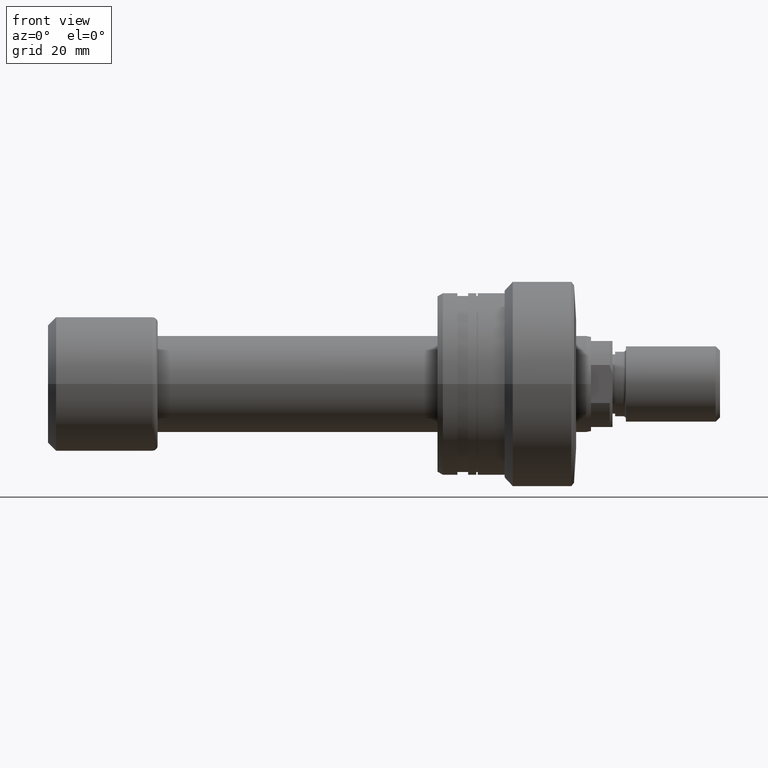
[diagram: clean part render]
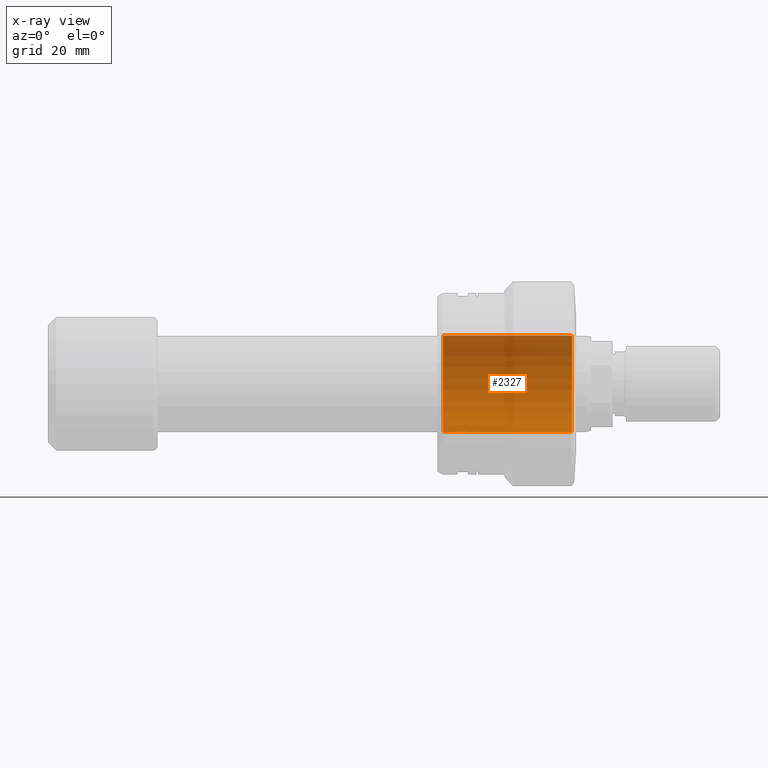
[diagram: x-ray — body ghosted, one internal face saturated and labeled with its STEP entity id]
A machine part, front view, then the same camera in x-ray: the body is ghosted and one INTERNAL B-rep face — a face not visible from any outside direction — is saturated and labeled: STEP entity #2327.
In plain terms, the highlighted cylindrical surface (partial cylindrical patch) has radius 9 mm, axis along (1, 0, 0).
Its self-contained STEP definition (entity closure, byte-faithful):
#267 = VERTEX_POINT ( 'NONE', #2468 ) ;
#286 = DIRECTION ( 'NONE',  ( 1.000000000000000000, -0.000000000000000000, -0.000000000000000000 ) ) ;
#299 = CARTESIAN_POINT ( 'NONE',  ( -1.500000000000000000, 0.000000000000000000, 0.000000000000000000 ) ) ;
#387 = DIRECTION ( 'NONE',  ( 1.000000000000000000, -0.000000000000000000, -0.000000000000000000 ) ) ;
#431 = ORIENTED_EDGE ( 'NONE', *, *, #2657, .T. ) ;
#602 = VECTOR ( 'NONE', #387, 1000.000000000000000 ) ;
#846 = VECTOR ( 'NONE', #286, 1000.000000000000000 ) ;
#892 = VERTEX_POINT ( 'NONE', #1211 ) ;
#896 = CARTESIAN_POINT ( 'NONE',  ( -25.50000000000003197, 0.000000000000000000, 0.000000000000000000 ) ) ;
#897 = ORIENTED_EDGE ( 'NONE', *, *, #1573, .T. ) ;
#955 = LINE ( 'NONE', #967, #846 ) ;
#967 = CARTESIAN_POINT ( 'NONE',  ( -51.95584412271570329, 1.102182119232617517E-15, 9.000000000000000000 ) ) ;
#995 = CARTESIAN_POINT ( 'NONE',  ( -51.95584412271570329, 0.000000000000000000, -9.000000000000000000 ) ) ;
#996 = DIRECTION ( 'NONE',  ( 0.000000000000000000, 0.000000000000000000, -1.000000000000000000 ) ) ;
#1092 = DIRECTION ( 'NONE',  ( -1.000000000000000000, -0.000000000000000000, -0.000000000000000000 ) ) ;
#1138 = ORIENTED_EDGE ( 'NONE', *, *, #2798, .F. ) ;
#1171 = AXIS2_PLACEMENT_3D ( 'NONE', #299, #2286, #996 ) ;
#1211 = CARTESIAN_POINT ( 'NONE',  ( -1.500000000000000000, 1.102182119232617517E-15, 9.000000000000000000 ) ) ;
#1239 = CARTESIAN_POINT ( 'NONE',  ( -25.50000000000003197, 0.000000000000000000, -9.000000000000000000 ) ) ;
#1360 = CIRCLE ( 'NONE', #1171, 9.000000000000000000 ) ;
#1409 = CARTESIAN_POINT ( 'NONE',  ( -51.95584412271570329, 0.000000000000000000, 0.000000000000000000 ) ) ;
#1521 = ORIENTED_EDGE ( 'NONE', *, *, #2802, .T. ) ;
#1573 = EDGE_CURVE ( 'NONE', #2037, #2025, #2598, .T. ) ;
#1883 = CARTESIAN_POINT ( 'NONE',  ( -1.500000000000000000, 0.000000000000000000, -9.000000000000000000 ) ) ;
#2025 = VERTEX_POINT ( 'NONE', #1883 ) ;
#2037 = VERTEX_POINT ( 'NONE', #1239 ) ;
#2042 = CYLINDRICAL_SURFACE ( 'NONE', #2063, 9.000000000000000000 ) ;
#2057 = DIRECTION ( 'NONE',  ( 0.000000000000000000, 0.000000000000000000, -1.000000000000000000 ) ) ;
#2063 = AXIS2_PLACEMENT_3D ( 'NONE', #1409, #2312, #2057 ) ;
#2280 = FACE_OUTER_BOUND ( 'NONE', #2667, .T. ) ;
#2286 = DIRECTION ( 'NONE',  ( 1.000000000000000000, 0.000000000000000000, 0.000000000000000000 ) ) ;
#2312 = DIRECTION ( 'NONE',  ( 1.000000000000000000, -0.000000000000000000, -0.000000000000000000 ) ) ;
#2327 = ADVANCED_FACE ( 'NONE', ( #2280 ), #2042, .F. ) ;
#2351 = CIRCLE ( 'NONE', #2809, 9.000000000000000000 ) ;
#2468 = CARTESIAN_POINT ( 'NONE',  ( -25.50000000000003197, 1.102182119232617517E-15, 9.000000000000000000 ) ) ;
#2494 = DIRECTION ( 'NONE',  ( 0.000000000000000000, 0.000000000000000000, 1.000000000000000000 ) ) ;
#2598 = LINE ( 'NONE', #995, #602 ) ;
#2657 = EDGE_CURVE ( 'NONE', #267, #2037, #2351, .T. ) ;
#2667 = EDGE_LOOP ( 'NONE', ( #1138, #431, #897, #1521 ) ) ;
#2798 = EDGE_CURVE ( 'NONE', #267, #892, #955, .T. ) ;
#2802 = EDGE_CURVE ( 'NONE', #2025, #892, #1360, .T. ) ;
#2809 = AXIS2_PLACEMENT_3D ( 'NONE', #896, #1092, #2494 ) ;